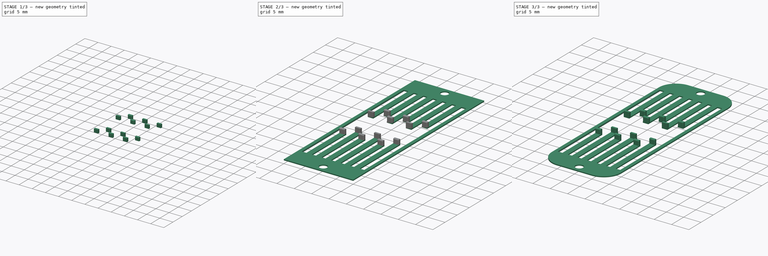
[diagram: build sequence overview — one tinted view per stage of 3, left to right]
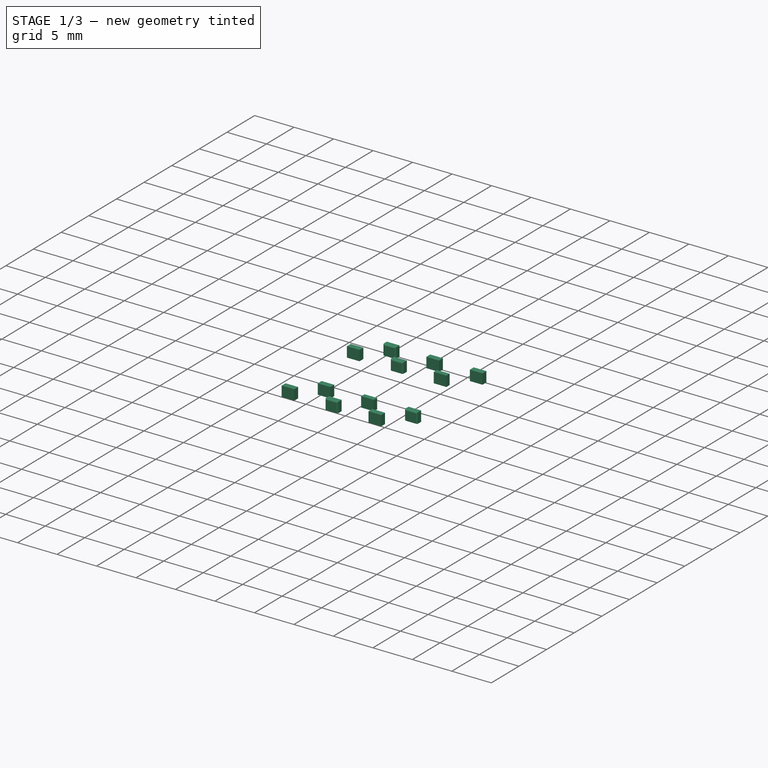
[diagram: stage 1 of 3 — iso view after this stage's code; geometry added in this stage tinted green]
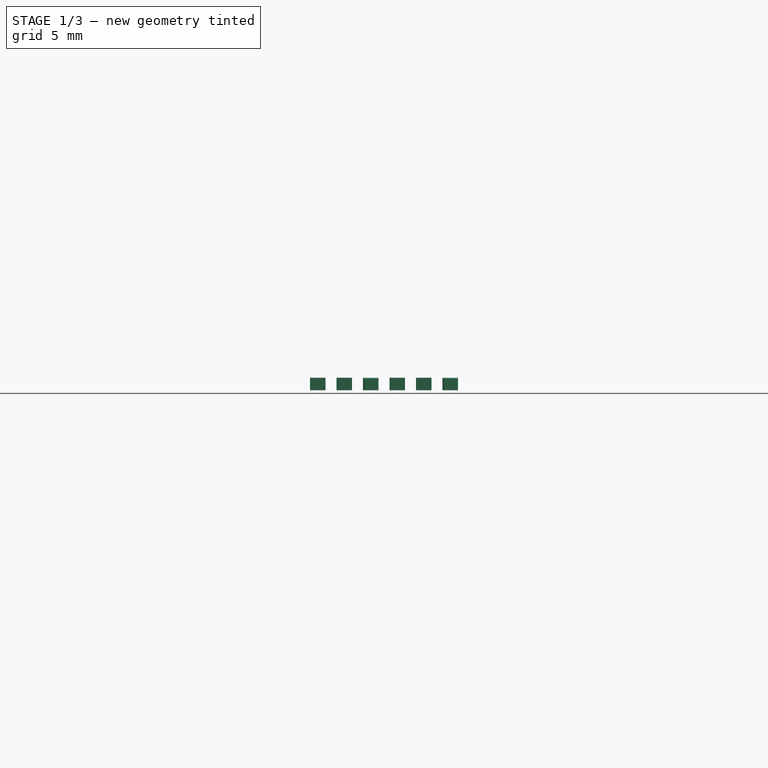
[diagram: stage 1 of 3 — front view after this stage's code; geometry added in this stage tinted green]
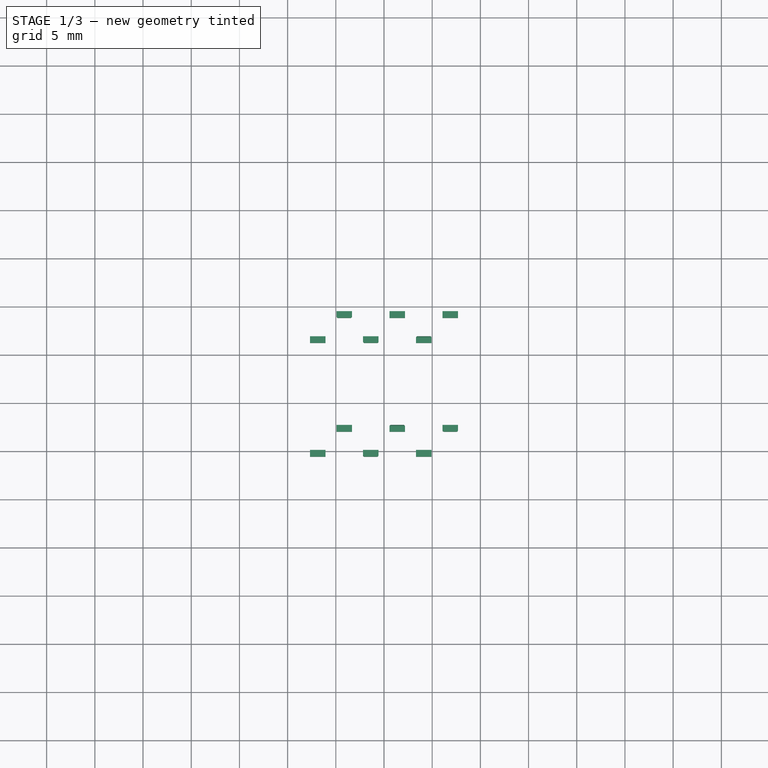
[diagram: stage 1 of 3 — top view after this stage's code; geometry added in this stage tinted green]
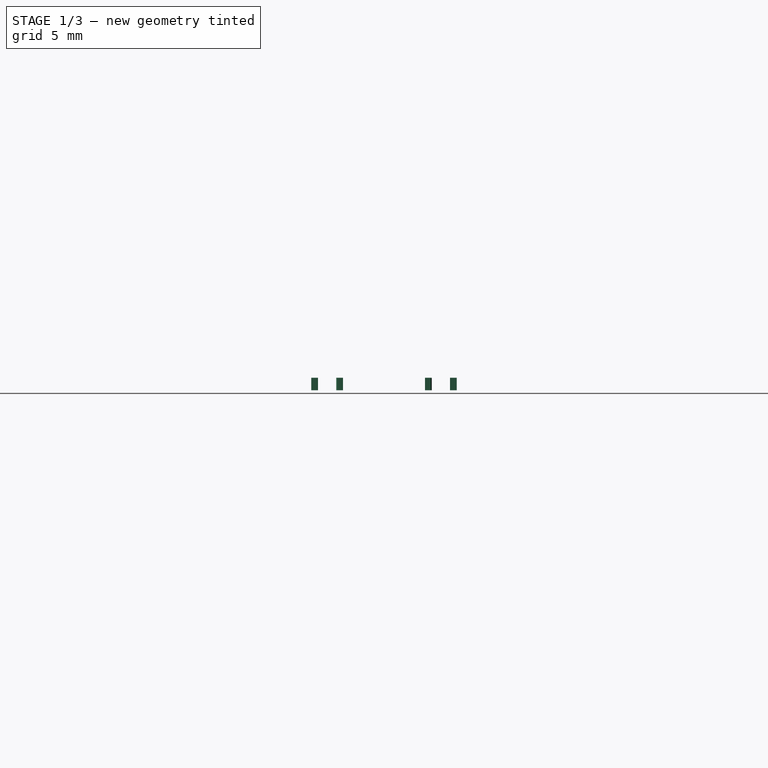
[diagram: stage 1 of 3 — right view after this stage's code; geometry added in this stage tinted green]
FCSTD DOCUMENT  (FreeCAD 0.16R6706 (Git))
Label: Lever_1.4
License: All rights reserved
LicenseURL: http://en.wikipedia.org/wiki/All_rights_reserved
objects: PartDesign::Fillet×3, Sketcher::SketchObject×2, PartDesign::Pad×2, Part::MultiFuse×1
note: 10 computed .brp shape members not serialized (recipe doc carries the construction recipe); baked Part::Feature solids carry a one-line shape summary decoded from their .brp

FEATURE [Sketcher::SketchObject] Sketch001
  Placement = pos=(0,0,0.3) rot=(0,0,1;0rad)
  sketch-geometry (48):
    g0: LineSegment StartX=2.325 StartY=19.45 StartZ=0 EndX=3.925 EndY=19.45 EndZ=0
    g1: LineSegment StartX=3.925 StartY=19.45 StartZ=0 EndX=3.925 EndY=20.15 EndZ=0
    g2: LineSegment StartX=2.325 StartY=19.45 StartZ=0 EndX=2.325 EndY=20.15 EndZ=0
    g3: LineSegment StartX=2.325 StartY=20.15 StartZ=0 EndX=3.925 EndY=20.15 EndZ=0
    g4: LineSegment StartX=5.075 StartY=22.75 StartZ=0 EndX=6.675 EndY=22.75 EndZ=0
    g5: LineSegment StartX=6.675 StartY=22.75 StartZ=0 EndX=6.675 EndY=22.05 EndZ=0
    g6: LineSegment StartX=6.675 StartY=22.05 StartZ=0 EndX=5.075 EndY=22.05 EndZ=0
    g7: LineSegment StartX=5.075 StartY=22.05 StartZ=0 EndX=5.075 EndY=22.75 EndZ=0
    g8: LineSegment StartX=7.825 StartY=20.15 StartZ=0 EndX=9.425 EndY=20.15 EndZ=0
    g9: LineSegment StartX=9.425 StartY=20.15 StartZ=0 EndX=9.425 EndY=19.45 EndZ=0
    g10: LineSegment StartX=9.425 StartY=19.45 StartZ=0 EndX=7.825 EndY=19.45 EndZ=0
    g11: LineSegment StartX=7.825 StartY=19.45 StartZ=0 EndX=7.825 EndY=20.15 EndZ=0
    g12: LineSegment StartX=10.575 StartY=22.75 StartZ=0 EndX=12.175 EndY=22.75 EndZ=0
    g13: LineSegment StartX=12.175 StartY=22.75 StartZ=0 EndX=12.175 EndY=22.05 EndZ=0
    g14: LineSegment StartX=12.175 StartY=22.05 StartZ=0 EndX=10.575 EndY=22.05 EndZ=0
    g15: LineSegment StartX=10.575 StartY=22.05 StartZ=0 EndX=10.575 EndY=22.75 EndZ=0
    g16: LineSegment StartX=13.325 StartY=20.15 StartZ=0 EndX=14.925 EndY=20.15 EndZ=0
    g17: LineSegment StartX=14.925 StartY=20.15 StartZ=0 EndX=14.925 EndY=19.45 EndZ=0
    g18: LineSegment StartX=14.925 StartY=19.45 StartZ=0 EndX=13.325 EndY=19.45 EndZ=0
    g19: LineSegment StartX=13.325 StartY=19.45 StartZ=0 EndX=13.325 EndY=20.15 EndZ=0
    g20: LineSegment StartX=16.075 StartY=22.75 StartZ=0 EndX=17.675 EndY=22.75 EndZ=0
    g21: LineSegment StartX=17.675 StartY=22.75 StartZ=0 EndX=17.675 EndY=22.05 EndZ=0
    g22: LineSegment StartX=17.675 StartY=22.05 StartZ=0 EndX=16.075 EndY=22.05 EndZ=0
    g23: LineSegment StartX=16.075 StartY=22.05 StartZ=0 EndX=16.075 EndY=22.75 EndZ=0
    g24: LineSegment StartX=2.325 StartY=31.95 StartZ=0 EndX=3.925 EndY=31.95 EndZ=0
    g25: LineSegment StartX=3.925 StartY=31.95 StartZ=0 EndX=3.925 EndY=31.25 EndZ=0
    g26: LineSegment StartX=3.925 StartY=31.25 StartZ=0 EndX=2.325 EndY=31.25 EndZ=0
    g27: LineSegment StartX=2.325 StartY=31.25 StartZ=0 EndX=2.325 EndY=31.95 EndZ=0
    g28: LineSegment StartX=5.075 StartY=34.55 StartZ=0 EndX=6.675 EndY=34.55 EndZ=0
    g29: LineSegment StartX=6.675 StartY=34.55 StartZ=0 EndX=6.675 EndY=33.85 EndZ=0
    g30: LineSegment StartX=6.675 StartY=33.85 StartZ=0 EndX=5.075 EndY=33.85 EndZ=0
    g31: LineSegment StartX=5.075 StartY=33.85 StartZ=0 EndX=5.075 EndY=34.55 EndZ=0
    g32: LineSegment StartX=7.825 StartY=31.95 StartZ=0 EndX=9.425 EndY=31.95 EndZ=0
    g33: LineSegment StartX=9.425 StartY=31.95 StartZ=0 EndX=9.425 EndY=31.25 EndZ=0
    g34: LineSegment StartX=9.425 StartY=31.25 StartZ=0 EndX=7.825 EndY=31.25 EndZ=0
    g35: LineSegment StartX=7.825 StartY=31.25 StartZ=0 EndX=7.825 EndY=31.95 EndZ=0
    g36: LineSegment StartX=10.575 StartY=34.55 StartZ=0 EndX=12.175 EndY=34.55 EndZ=0
    g37: LineSegment StartX=12.175 StartY=34.55 StartZ=0 EndX=12.175 EndY=33.85 EndZ=0
    g38: LineSegment StartX=12.175 StartY=33.85 StartZ=0 EndX=10.575 EndY=33.85 EndZ=0
    g39: LineSegment StartX=10.575 StartY=33.85 StartZ=0 EndX=10.575 EndY=34.55 EndZ=0
    g40: LineSegment StartX=13.325 StartY=31.95 StartZ=0 EndX=14.925 EndY=31.95 EndZ=0
    g41: LineSegment StartX=14.925 StartY=31.95 StartZ=0 EndX=14.925 EndY=31.25 EndZ=0
    g42: LineSegment StartX=14.925 StartY=31.25 StartZ=0 EndX=13.325 EndY=31.25 EndZ=0
    g43: LineSegment StartX=13.325 StartY=31.25 StartZ=0 EndX=13.325 EndY=31.95 EndZ=0
    g44: LineSegment StartX=16.075 StartY=34.55 StartZ=0 EndX=17.675 EndY=34.55 EndZ=0
    g45: LineSegment StartX=17.675 StartY=34.55 StartZ=0 EndX=17.675 EndY=33.85 EndZ=0
    g46: LineSegment StartX=17.675 StartY=33.85 StartZ=0 EndX=16.075 EndY=33.85 EndZ=0
    g47: LineSegment StartX=16.075 StartY=33.85 StartZ=0 EndX=16.075 EndY=34.55 EndZ=0
  constraints (144):
    c: Horizontal(g0)
    c: Coincident(g0,g1)
    c: Vertical(g1)
    c: Coincident(g2,g0)
    c: Vertical(g2)
    c: DistanceX(g0,g0) = 1.6
    c: DistanceY(g0,g2) = 0.7
    c: Coincident(g3,g2)
    c: Coincident(g3,g1)
    c: Horizontal(g3)
    c: Coincident(g4,g5)
    c: Coincident(g5,g6)
    c: Coincident(g6,g7)
    c: Coincident(g7,g4)
    c: Horizontal(g4)
    c: Horizontal(g6)
    c: Vertical(g5)
    c: Vertical(g7)
    c: Coincident(g8,g9)
    c: Coincident(g9,g10)
    c: Coincident(g10,g11)
    c: Coincident(g11,g8)
    c: Horizontal(g8)
    c: Horizontal(g10)
    c: Vertical(g9)
    c: Vertical(g11)
    c: Coincident(g12,g13)
    c: Coincident(g13,g14)
    c: Coincident(g14,g15)
    c: Coincident(g15,g12)
    c: Horizontal(g12)
    c: Horizontal(g14)
    c: Vertical(g13)
    c: Vertical(g15)
    c: Coincident(g16,g17)
    c: Coincident(g17,g18)
    c: Coincident(g18,g19)
    c: Coincident(g19,g16)
    c: Horizontal(g16)
    c: Horizontal(g18)
    c: Vertical(g17)
    c: Vertical(g19)
    c: Coincident(g20,g21)
    c: Coincident(g21,g22)
    c: Coincident(g22,g23)
    c: Coincident(g23,g20)
    c: Horizontal(g20)
    c: Horizontal(g22)
    c: Vertical(g21)
    c: Vertical(g23)
    c: Coincident(g24,g25)
    c: Coincident(g25,g26)
    c: Coincident(g26,g27)
    c: Coincident(g27,g24)
    c: Horizontal(g24)
    c: Horizontal(g26)
    c: Vertical(g25)
    c: Vertical(g27)
    c: Coincident(g28,g29)
    c: Coincident(g29,g30)
    c: Coincident(g30,g31)
    c: Coincident(g31,g28)
    c: Horizontal(g28)
    c: Horizontal(g30)
    c: Vertical(g29)
    c: Vertical(g31)
    c: Coincident(g32,g33)
    c: Coincident(g33,g34)
    c: Coincident(g34,g35)
    c: Coincident(g35,g32)
    c: Horizontal(g32)
    c: Horizontal(g34)
    c: Vertical(g33)
    c: Vertical(g35)
    c: Coincident(g36,g37)
    c: Coincident(g37,g38)
    c: Coincident(g38,g39)
    c: Coincident(g39,g36)
    c: Horizontal(g36)
    c: Horizontal(g38)
    c: Vertical(g37)
    c: Vertical(g39)
    c: Coincident(g40,g41)
    c: Coincident(g41,g42)
    c: Coincident(g42,g43)
    c: Coincident(g43,g40)
    c: Horizontal(g40)
    c: Horizontal(g42)
    c: Vertical(g41)
    c: Vertical(g43)
    c: DistanceX(g4,g4) = 1.6
    c: DistanceX(g8,g8) = 1.6
    c: DistanceX(g12,g12) = 1.6
    c: DistanceX(g16,g16) = 1.6
    c: DistanceX(g20,g20) = 1.6
    c: DistanceY(g6,g4) = 0.7
    c: DistanceY(g10,g8) = 0.7
    c: DistanceY(g14,g12) = 0.7
    c: DistanceY(g18,g16) = 0.7
    c: DistanceY(g22,g20) = 0.7
    c: DistanceY(g26,g24) = 0.7
    c: DistanceY(g30,g28) = 0.7
    c: DistanceY(g34,g32) = 0.7
    c: DistanceY(g38,g36) = 0.7
    c: DistanceY(g42,g40) = 0.7
    c: DistanceX(g2,g26) = 0
    c: DistanceX(g1,g25) = 0
    c: DistanceX(g4,g30) = 0
    c: DistanceX(g4,g29) = 0
    c: DistanceX(g8,g34) = 0
    c: DistanceX(g8,g33) = 0
    c: DistanceX(g12,g38) = 0
    c: DistanceX(g12,g37) = 0
    c: DistanceX(g16,g42) = 0
    c: DistanceX(g16,g41) = 0
    c: Coincident(g44,g45)
    c: Coincident(g45,g46)
    c: Coincident(g46,g47)
    c: Coincident(g47,g44)
    c: Horizontal(g44)
    c: Horizontal(g46)
    c: Vertical(g45)
    c: Vertical(g47)
    c: DistanceY(g46,g44) = 0.7
    c: DistanceX(g20,g46) = 0
    c: DistanceX(g20,g45) = 0
    c: DistanceY(g10,g0) = 0
    c: DistanceY(g18,g9) = 0
    c: DistanceY(g14,g5) = 0
    c: DistanceY(g22,g13) = 0
    c: DistanceY(g34,g25) = 0
    c: DistanceY(g42,g33) = 0
    c: DistanceY(g46,g37) = 0
    c: DistanceY(g38,g29) = 0
    c: DistanceY(g-1,g26) = 31.25
    c: DistanceY(g-1,g30) = 33.85
    c: DistanceX(g1,g4) = 1.15
    c: DistanceX(g4,g8) = 1.15
    c: DistanceX(g8,g12) = 1.15
    c: DistanceX(g12,g16) = 1.15
    c: DistanceX(g16,g20) = 1.15
    c: DistanceX(g-1,g0) = 2.325
    c: DistanceY(g-1,g4) = 22.75
    c: DistanceY(g-1,g2) = 20.15
FEATURE [PartDesign::Pad] Pad001
  Length = 1.3
  Length2 = 100
  Placement = pos=(0,0,0.3) rot=(0,0,1;0rad)
  Sketch = -> Sketch001
  Type = 0
FEATURE [PartDesign::Fillet] Fillet001
  Base = -> Pad001 [Edge101,Edge106,Edge104,Edge92,Edge94,Edge89,Edge73,Edge76,Edge74,Edge56,Edge58,Edge53,Edge37,Edge40,Edge38,Edge32,Edge34,Edge29]
  Placement = pos=(0,0,0.3) rot=(0,0,1;0rad)
  Radius = 0.15
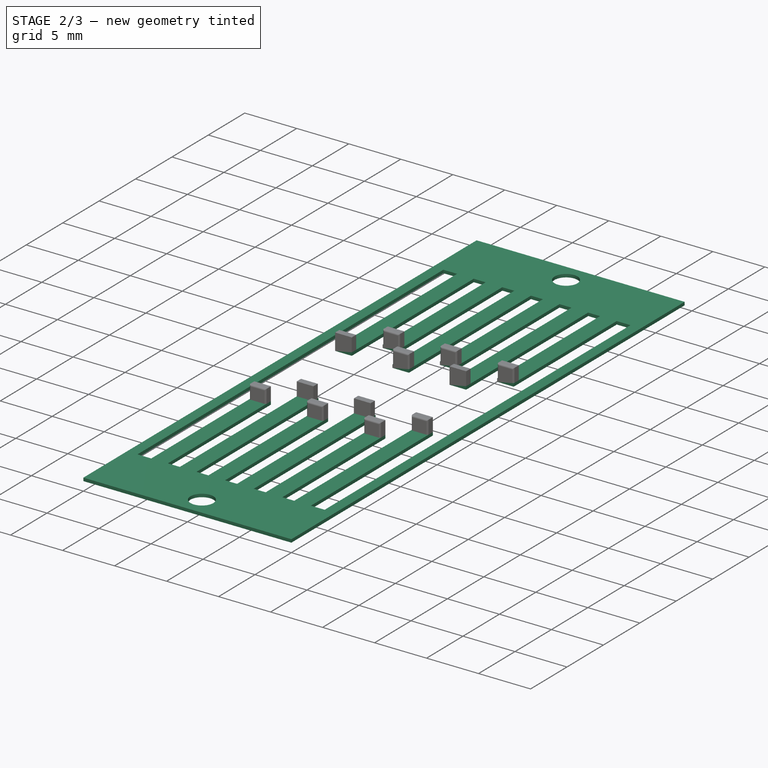
[diagram: stage 2 of 3 — iso view after this stage's code; geometry added in this stage tinted green]
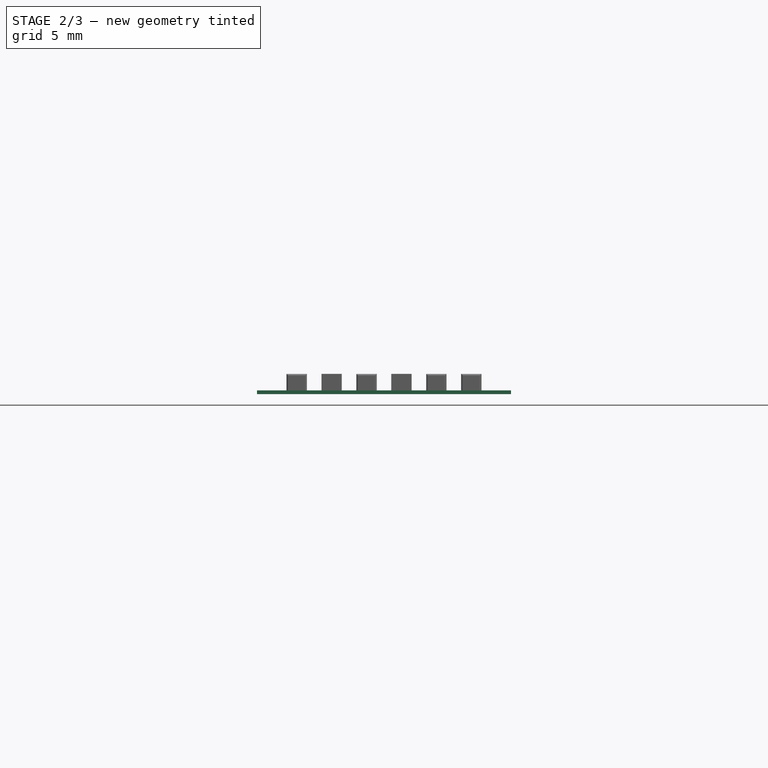
[diagram: stage 2 of 3 — front view after this stage's code; geometry added in this stage tinted green]
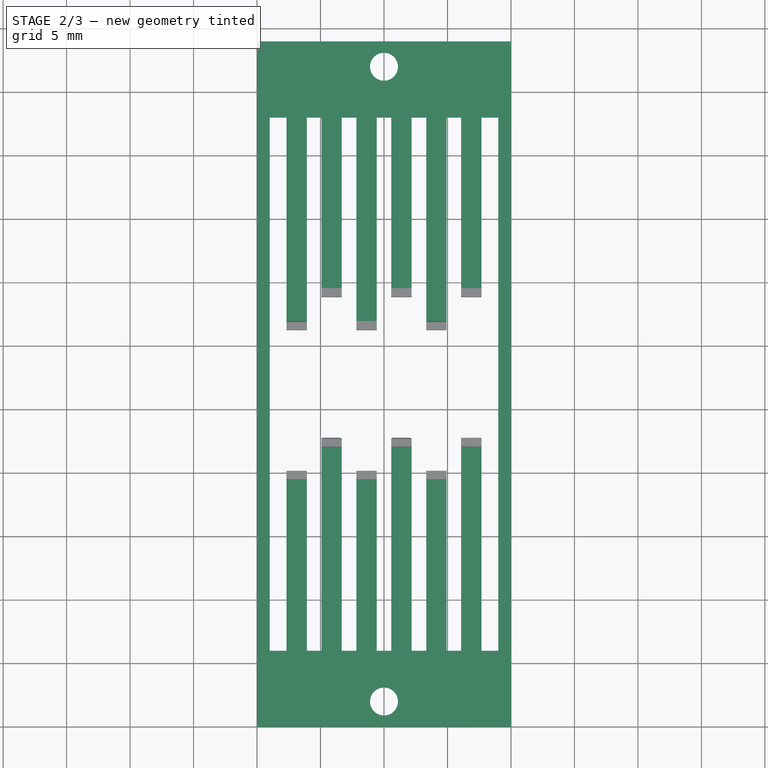
[diagram: stage 2 of 3 — top view after this stage's code; geometry added in this stage tinted green]
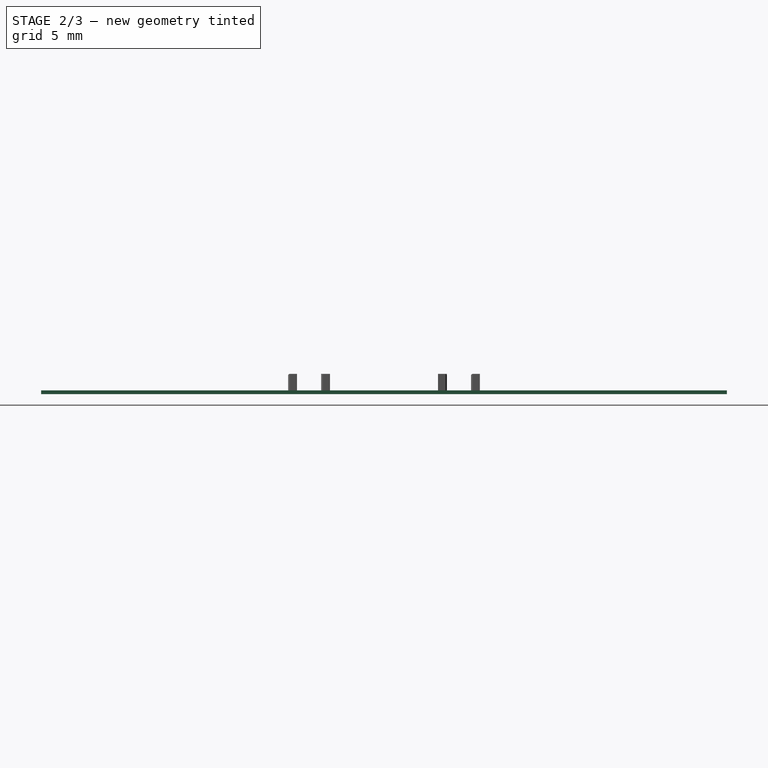
[diagram: stage 2 of 3 — right view after this stage's code; geometry added in this stage tinted green]
FEATURE [Sketcher::SketchObject] Sketch009
  sketch-geometry (58):
    g0: LineSegment StartX=0 StartY=0 StartZ=0 EndX=20 EndY=0 EndZ=0
    g1: LineSegment StartX=20 StartY=0 StartZ=0 EndX=20 EndY=54 EndZ=0
    g2: LineSegment StartX=20 StartY=54 StartZ=0 EndX=0 EndY=54 EndZ=0
    g3: LineSegment StartX=0 StartY=54 StartZ=0 EndX=0 EndY=0 EndZ=0
    g4: LineSegment StartX=1 StartY=48 StartZ=0 EndX=1 EndY=6 EndZ=0
    g5: LineSegment StartX=1 StartY=6 StartZ=0 EndX=2.325 EndY=6 EndZ=0
    g6: LineSegment StartX=2.325 StartY=6 StartZ=0 EndX=2.325 EndY=20.15 EndZ=0
    g7: LineSegment StartX=2.325 StartY=20.15 StartZ=0 EndX=3.925 EndY=20.15 EndZ=0
    g8: LineSegment StartX=3.925 StartY=20.15 StartZ=0 EndX=3.925 EndY=6 EndZ=0
    g9: LineSegment StartX=3.925 StartY=6 StartZ=0 EndX=5.075 EndY=6 EndZ=0
    g10: LineSegment StartX=5.075 StartY=6 StartZ=0 EndX=5.075 EndY=22.75 EndZ=0
    g11: LineSegment StartX=5.075 StartY=22.75 StartZ=0 EndX=6.675 EndY=22.75 EndZ=0
    g12: LineSegment StartX=6.675 StartY=22.75 StartZ=0 EndX=6.675 EndY=6 EndZ=0
    g13: LineSegment StartX=6.675 StartY=6 StartZ=0 EndX=7.825 EndY=6 EndZ=0
    g14: LineSegment StartX=7.825 StartY=6 StartZ=0 EndX=7.825 EndY=20.15 EndZ=0
    g15: LineSegment StartX=7.825 StartY=20.15 StartZ=0 EndX=9.425 EndY=20.15 EndZ=0
    g16: LineSegment StartX=9.425 StartY=20.15 StartZ=0 EndX=9.425 EndY=6 EndZ=0
    g17: LineSegment StartX=9.425 StartY=6 StartZ=0 EndX=10.575 EndY=6 EndZ=0
    g18: LineSegment StartX=10.575 StartY=6 StartZ=0 EndX=10.575 EndY=22.75 EndZ=0
    g19: LineSegment StartX=10.575 StartY=22.75 StartZ=0 EndX=12.175 EndY=22.75 EndZ=0
    g20: LineSegment StartX=12.175 StartY=22.75 StartZ=0 EndX=12.175 EndY=6 EndZ=0
    g21: LineSegment StartX=12.175 StartY=6 StartZ=0 EndX=13.325 EndY=6 EndZ=0
    g22: LineSegment StartX=13.325 StartY=6 StartZ=0 EndX=13.325 EndY=20.15 EndZ=0
    g23: LineSegment StartX=13.325 StartY=20.15 StartZ=0 EndX=14.925 EndY=20.15 EndZ=0
    g24: LineSegment StartX=14.925 StartY=20.15 StartZ=0 EndX=14.925 EndY=6 EndZ=0
    g25: LineSegment StartX=19 StartY=6 StartZ=0 EndX=19 EndY=48 EndZ=0
    g26: LineSegment StartX=19 StartY=48 StartZ=0 EndX=17.675 EndY=48 EndZ=0
    g27: LineSegment StartX=17.675 StartY=48 StartZ=0 EndX=17.675 EndY=33.85 EndZ=0
    g28: LineSegment StartX=17.675 StartY=33.85 StartZ=0 EndX=16.075 EndY=33.85 EndZ=0
    g29: LineSegment StartX=16.075 StartY=33.85 StartZ=0 EndX=16.075 EndY=48 EndZ=0
    g30: LineSegment StartX=16.075 StartY=48 StartZ=0 EndX=14.925 EndY=48 EndZ=0
    g31: LineSegment StartX=14.925 StartY=48 StartZ=0 EndX=14.925 EndY=31.25 EndZ=0
    g32: LineSegment StartX=14.925 StartY=31.25 StartZ=0 EndX=13.325 EndY=31.25 EndZ=0
    g33: LineSegment StartX=13.325 StartY=31.25 StartZ=0 EndX=13.325 EndY=48 EndZ=0
    g34: LineSegment StartX=13.325 StartY=48 StartZ=0 EndX=12.175 EndY=48 EndZ=0
    g35: LineSegment StartX=12.175 StartY=48 StartZ=0 EndX=12.175 EndY=33.85 EndZ=0
    g36: LineSegment StartX=12.175 StartY=33.85 StartZ=0 EndX=10.575 EndY=33.85 EndZ=0
    g37: LineSegment StartX=10.575 StartY=33.85 StartZ=0 EndX=10.575 EndY=48 EndZ=0
    g38: LineSegment StartX=10.575 StartY=48 StartZ=0 EndX=9.425 EndY=48 EndZ=0
    g39: LineSegment StartX=9.425 StartY=48 StartZ=0 EndX=9.425 EndY=31.25 EndZ=0
    g40: LineSegment StartX=9.425 StartY=31.25 StartZ=0 EndX=7.825 EndY=31.25 EndZ=0
    g41: LineSegment StartX=7.825 StartY=31.25 StartZ=0 EndX=7.825 EndY=48 EndZ=0
    g42: LineSegment StartX=7.825 StartY=48 StartZ=0 EndX=6.675 EndY=48 EndZ=0
    g43: LineSegment StartX=6.675 StartY=48 StartZ=0 EndX=6.675 EndY=33.85 EndZ=0
    g44: LineSegment StartX=6.675 StartY=33.85 StartZ=0 EndX=5.075 EndY=33.85 EndZ=0
    g45: LineSegment StartX=5.075 StartY=33.85 StartZ=0 EndX=5.075 EndY=48 EndZ=0
    g46: LineSegment StartX=5.075 StartY=48 StartZ=0 EndX=3.925 EndY=48 EndZ=0
    g47: LineSegment StartX=3.925 StartY=48 StartZ=0 EndX=3.925 EndY=31.25 EndZ=0
    g48: LineSegment StartX=3.925 StartY=31.25 StartZ=0 EndX=2.325 EndY=31.25 EndZ=0
    g49: LineSegment StartX=2.325 StartY=31.25 StartZ=0 EndX=2.325 EndY=48 EndZ=0
    g50: LineSegment StartX=2.325 StartY=48 StartZ=0 EndX=1 EndY=48 EndZ=0
    g51: Circle CenterX=10 CenterY=52 CenterZ=0 NormalX=0 NormalY=0 NormalZ=1 Radius=1.1
    g52: Circle CenterX=10 CenterY=2 CenterZ=0 NormalX=0 NormalY=0 NormalZ=1 Radius=1.1
    g53: LineSegment StartX=14.925 StartY=6 StartZ=0 EndX=16.075 EndY=6 EndZ=0
    g54: LineSegment StartX=16.075 StartY=6 StartZ=0 EndX=16.075 EndY=22.75 EndZ=0
    g55: LineSegment StartX=16.075 StartY=22.75 StartZ=0 EndX=17.675 EndY=22.75 EndZ=0
    g56: LineSegment StartX=17.675 StartY=22.75 StartZ=0 EndX=17.675 EndY=6 EndZ=0
    g57: LineSegment StartX=17.675 StartY=6 StartZ=0 EndX=19 EndY=6 EndZ=0
  constraints (173):
    c: Coincident(g0,g1)
    c: Coincident(g1,g2)
    c: Coincident(g2,g3)
    c: Coincident(g3,g0)
    c: Horizontal(g0)
    c: Horizontal(g2)
    c: Vertical(g1)
    c: Vertical(g3)
    c: Coincident(g0,g-1)
    c: DistanceY(g-1,g2) = 54
    c: DistanceX(g2,g1) = 20
    c: Vertical(g4)
    c: Coincident(g4,g5)
    c: Horizontal(g5)
    c: Coincident(g5,g6)
    c: Vertical(g6)
    c: Coincident(g6,g7)
    c: Coincident(g7,g8)
    c: Vertical(g8)
    c: Coincident(g8,g9)
    c: Horizontal(g9)
    c: Coincident(g9,g10)
    c: Vertical(g10)
    c: Coincident(g10,g11)
    c: Coincident(g11,g12)
    c: Vertical(g12)
    c: Coincident(g12,g13)
    c: Coincident(g13,g14)
    c: Vertical(g14)
    c: Coincident(g14,g15)
    c: Horizontal(g15)
    c: Coincident(g15,g16)
    c: Vertical(g16)
    c: Coincident(g16,g17)
    c: Horizontal(g17)
    c: Coincident(g17,g18)
    c: Vertical(g18)
    c: Coincident(g18,g19)
    c: Horizontal(g19)
    c: Coincident(g19,g20)
    c: Vertical(g20)
    c: Coincident(g20,g21)
    c: Horizontal(g21)
    c: Coincident(g21,g22)
    c: Vertical(g22)
    c: Coincident(g22,g23)
    c: Horizontal(g23)
    c: Coincident(g23,g24)
    c: Vertical(g24)
    c: Vertical(g25)
    c: Coincident(g25,g26)
    c: Coincident(g26,g27)
    c: Vertical(g27)
    c: Coincident(g27,g28)
    c: Coincident(g28,g29)
    c: Vertical(g29)
    c: Coincident(g29,g30)
    c: Horizontal(g30)
    c: Coincident(g30,g31)
    c: Vertical(g31)
    c: Coincident(g31,g32)
    c: Horizontal(g32)
    c: Coincident(g32,g33)
    c: Vertical(g33)
    c: Coincident(g33,g34)
    c: Horizontal(g34)
    c: Coincident(g34,g35)
    c: Vertical(g35)
    c: Coincident(g35,g36)
    c: Horizontal(g36)
    c: Coincident(g36,g37)
    c: Vertical(g37)
    c: Coincident(g37,g38)
    c: Horizontal(g38)
    c: Coincident(g38,g39)
    c: Vertical(g39)
    c: Coincident(g39,g40)
    c: Horizontal(g40)
    c: Coincident(g40,g41)
    c: Vertical(g41)
    c: Coincident(g41,g42)
    c: Horizontal(g42)
    c: Coincident(g42,g43)
    c: Vertical(g43)
    c: Coincident(g43,g44)
    c: Horizontal(g44)
    c: Coincident(g44,g45)
    c: Vertical(g45)
    c: Coincident(g45,g46)
    c: Horizontal(g46)
    c: Coincident(g46,g47)
    c: Vertical(g47)
    c: Coincident(g47,g48)
    c: Horizontal(g48)
    c: Coincident(g48,g49)
    c: Vertical(g49)
    c: Coincident(g49,g50)
    c: Coincident(g50,g4)
    c: Radius(g52) = 1.1
    c: Radius(g51) = 1.1
    c: DistanceX(g-1,g51) = 10
    c: DistanceX(g-1,g52) = 10
    c: DistanceY(g-1,g52) = 2
    c: DistanceY(g-1,g51) = 52
    c: DistanceX(g-1,g4) = 1
    c: DistanceX(g25,g0) = 1
    c: DistanceX(g-1,g5) = 2.325
    c: DistanceX(g6,g7) = 1.6
    c: DistanceX(g7,g10) = 1.15
    c: DistanceX(g11,g14) = 1.15
    c: DistanceX(g15,g18) = 1.15
    c: DistanceX(g19,g22) = 1.15
    c: DistanceX(g10,g11) = 1.6
    c: DistanceX(g14,g15) = 1.6
    c: DistanceX(g18,g19) = 1.6
    c: DistanceX(g22,g23) = 1.6
    c: DistanceX(g48,g47) = 1.6
    c: DistanceX(g44,g43) = 1.6
    c: DistanceX(g40,g39) = 1.6
    c: DistanceX(g36,g35) = 1.6
    c: DistanceX(g32,g31) = 1.6
    c: Coincident(g24,g53)
    c: Horizontal(g53)
    c: Coincident(g53,g54)
    c: Vertical(g54)
    c: Coincident(g54,g55)
    c: Horizontal(g55)
    c: Coincident(g55,g56)
    c: Vertical(g56)
    c: Coincident(g57,g56)
    c: Coincident(g57,g25)
    c: DistanceX(g54,g55) = 1.6
    c: DistanceX(g23,g54) = 1.15
    c: DistanceX(g28,g27) = 1.6
    c: DistanceX(g47,g44) = 1.15
    c: DistanceX(g43,g40) = 1.15
    c: DistanceX(g39,g36) = 1.15
    c: DistanceX(g35,g32) = 1.15
    c: DistanceX(g31,g28) = 1.15
    c: DistanceX(g-1,g48) = 2.325
    c: DistanceY(g4,g49) = 0
    c: DistanceY(g49,g46) = 0
    c: DistanceY(g45,g42) = 0
    c: DistanceY(g41,g38) = 0
    c: DistanceY(g37,g34) = 0
    c: DistanceY(g33,g30) = 0
    c: DistanceY(g29,g26) = 0
    c: Horizontal(g26)
    c: Horizontal(g7)
    c: Horizontal(g11)
    c: Horizontal(g57)
    c: DistanceY(g5,g8) = 0
    c: Horizontal(g13)
    c: DistanceY(g9,g12) = 0
    c: DistanceY(g13,g16) = 0
    c: DistanceY(g24,g21) = 0
    c: DistanceY(g20,g17) = 0
    c: DistanceY(g53,g56) = 0
    c: DistanceY(g-1,g4) = 6
    c: DistanceY(g4,g2) = 6
    c: Horizontal(g28)
    c: DistanceY(g44,g2) = 20.15
    c: DistanceY(g36,g43) = 0
    c: DistanceY(g28,g35) = 0
    c: DistanceY(g-1,g6) = 20.15
    c: DistanceY(g7,g14) = 0
    c: DistanceY(g15,g22) = 0
    c: DistanceY(g48,g2) = 22.75
    c: DistanceY(g47,g40) = 0
    c: DistanceY(g39,g32) = 0
    c: DistanceY(g-1,g10) = 22.75
    c: DistanceY(g11,g18) = 0
    c: DistanceY(g19,g54) = 0
FEATURE [PartDesign::Pad] Pad009
  Length = 0.3
  Length2 = 100
  Sketch = -> Sketch009
  Type = 0
FEATURE [PartDesign::Fillet] Fillet002
  Base = -> Fillet001 [Edge176,Edge178,Edge175,Edge146,Edge148,Edge143,Edge163,Edge166,Edge164,Edge151,Edge154,Edge152,Edge122,Edge124,Edge119,Edge131,Edge136,Edge134]
  Placement = pos=(0,0,0.3) rot=(0,0,1;0rad)
  Radius = 0.15
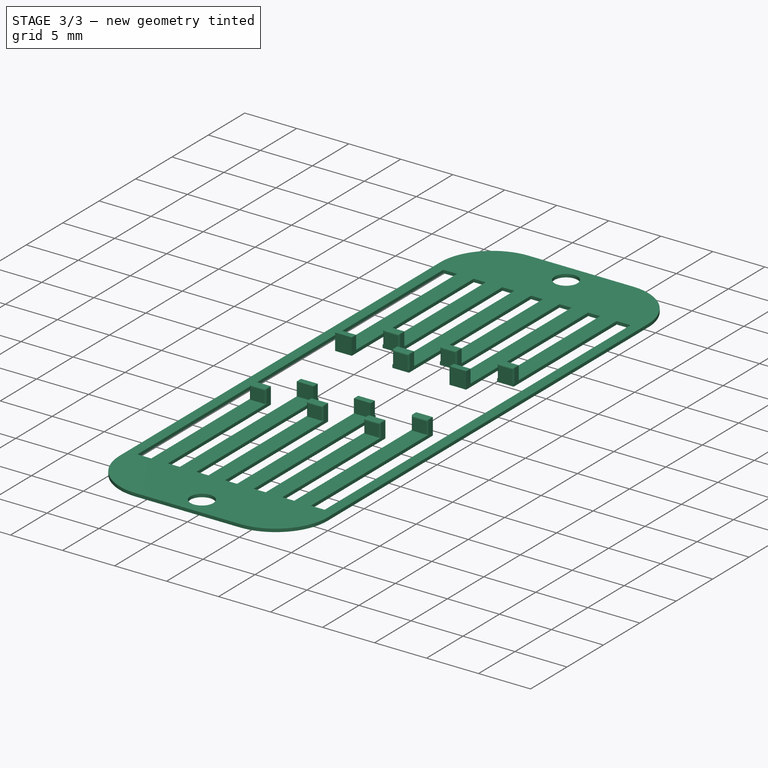
[diagram: stage 3 of 3 — iso view after this stage's code; geometry added in this stage tinted green]
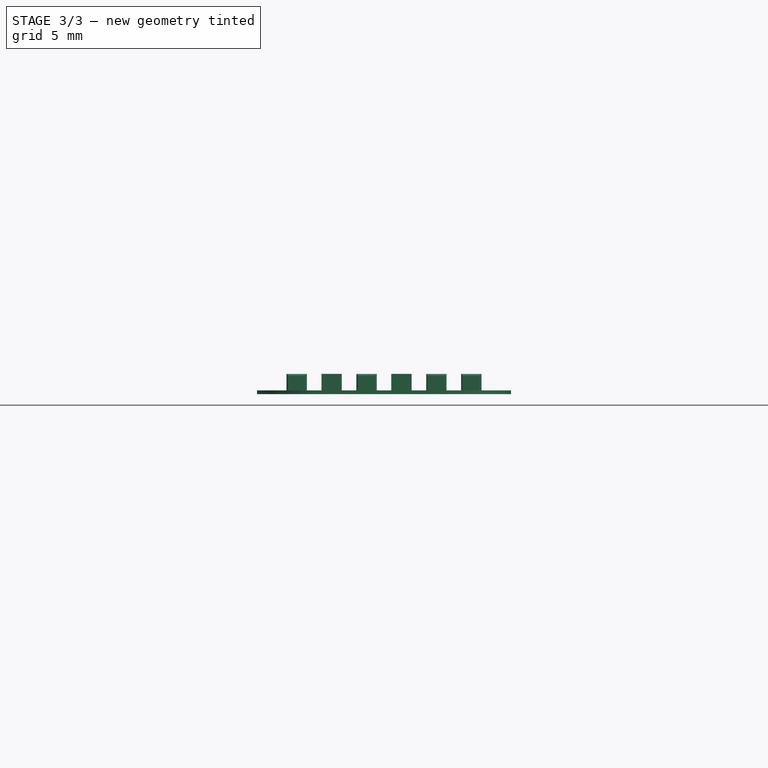
[diagram: stage 3 of 3 — front view after this stage's code; geometry added in this stage tinted green]
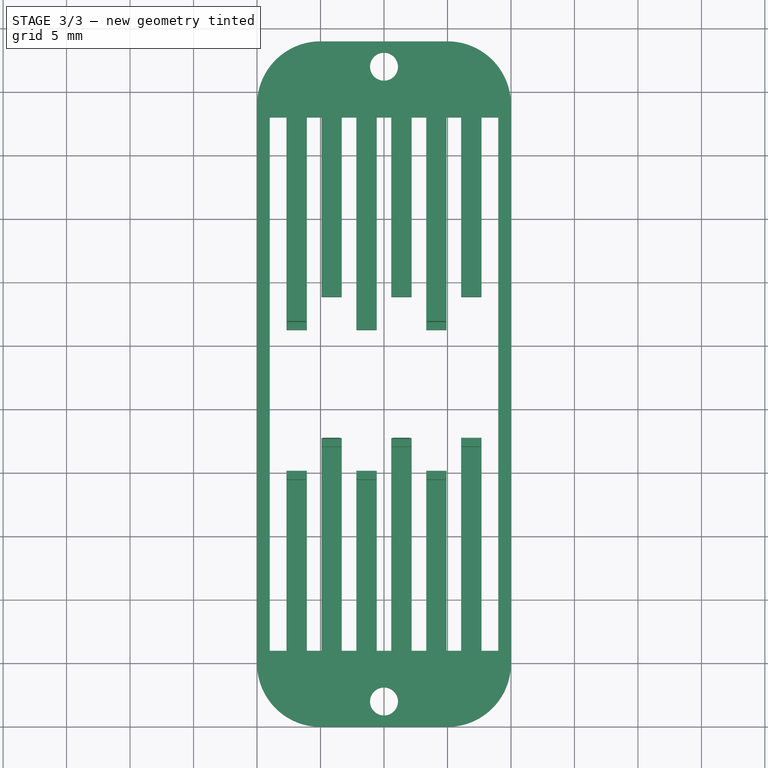
[diagram: stage 3 of 3 — top view after this stage's code; geometry added in this stage tinted green]
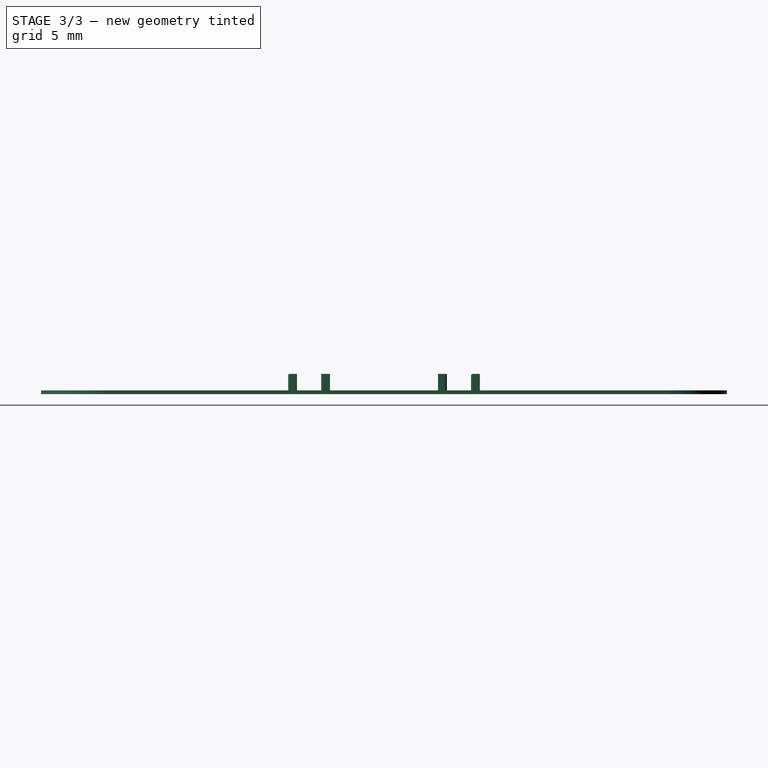
[diagram: stage 3 of 3 — right view after this stage's code; geometry added in this stage tinted green]
FEATURE [PartDesign::Fillet] Fillet
  Base = -> Pad009 [Edge2,Edge1,Edge5,Edge8]
  Radius = 5
FEATURE [Part::MultiFuse] Fusion
  Shapes = -> [Fillet002,Fillet]
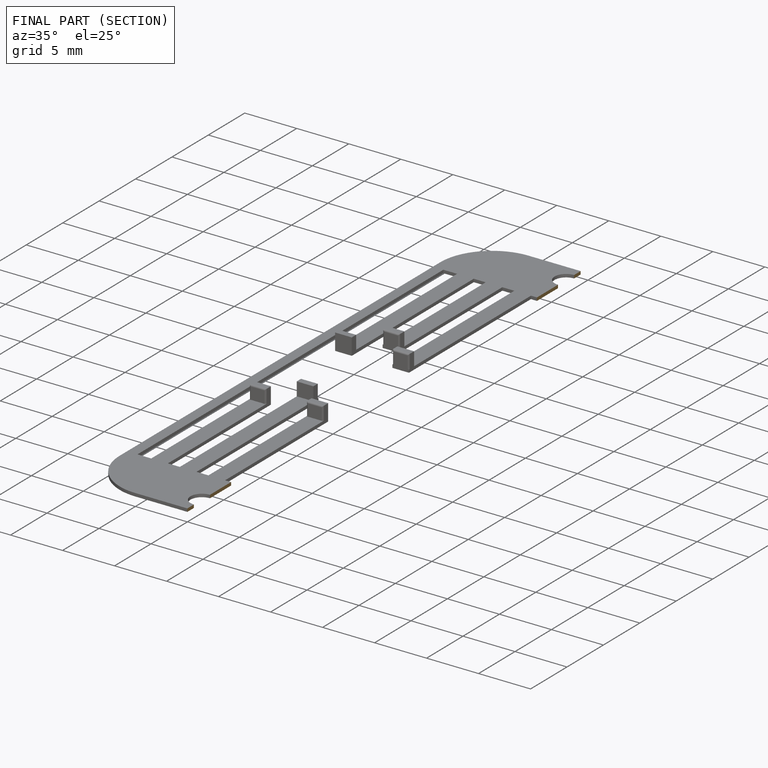
[diagram: finished part — half-section view (interior)]
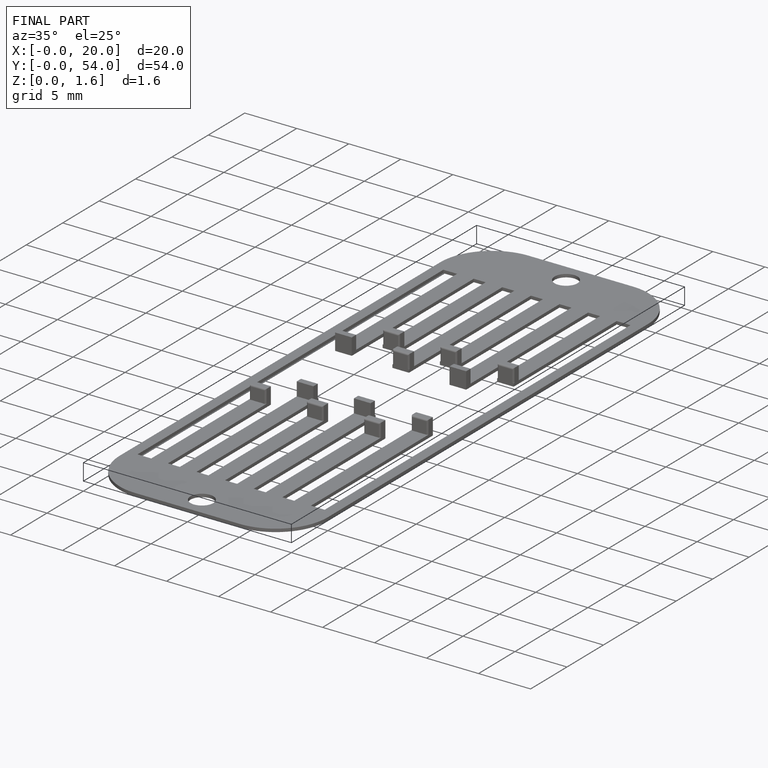
[diagram: finished part — iso view with bounding-box wireframe]
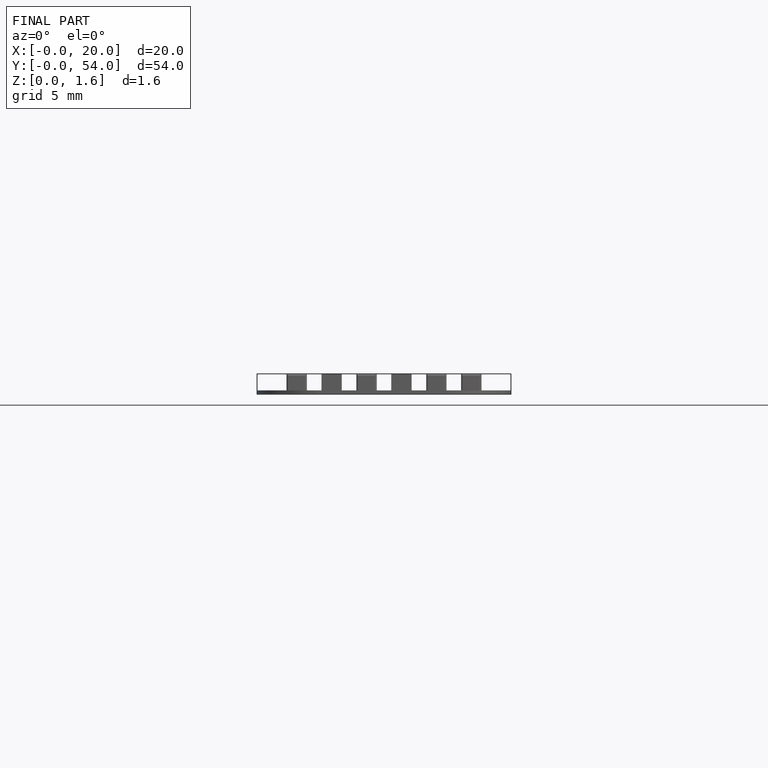
[diagram: finished part — front view with bounding-box wireframe]
